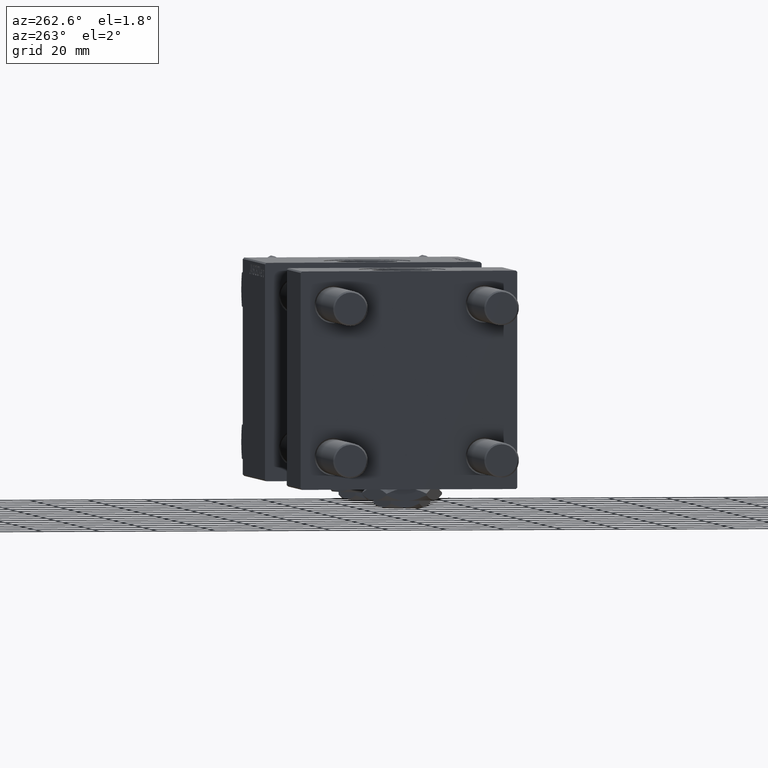
[diagram: clean part render]
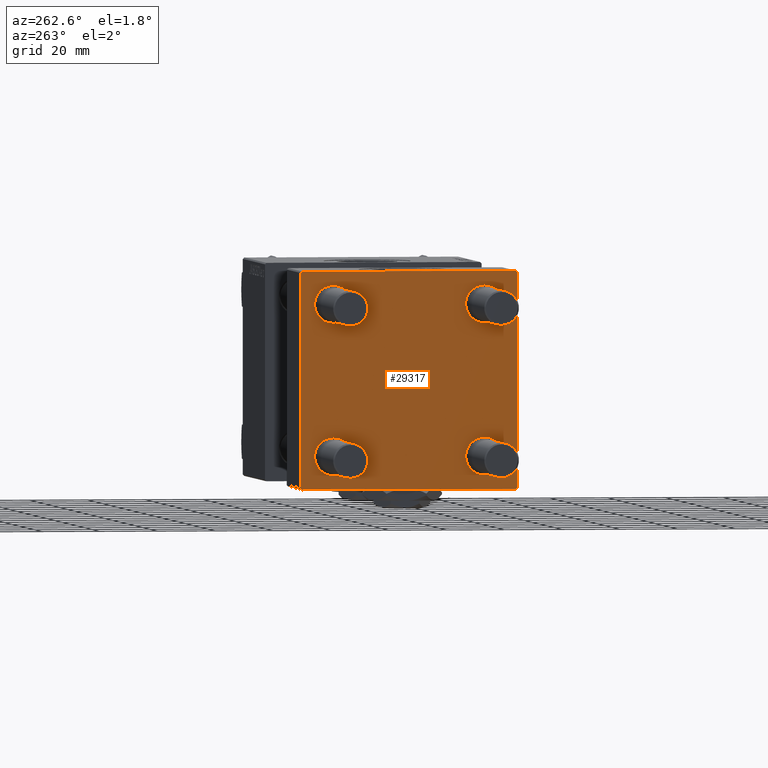
[diagram: same view with one face highlighted and labeled with its STEP entity id]
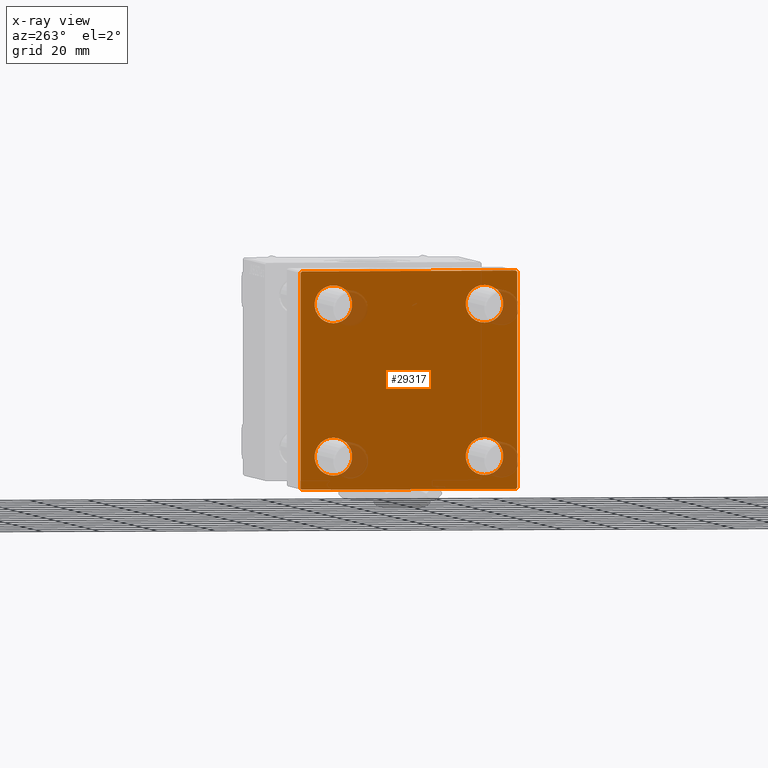
[diagram: x-ray of the same camera — body ghosted, the highlighted face saturated]
A machine part, auxiliary view. The second image highlights one B-rep face of the part: STEP entity #29317.
The next image is the same camera in x-ray: the body ghosted, the highlighted face saturated — about 5% of this face is hidden behind the body in this view.
In plain terms, the highlighted planar face has unit normal (-1, 0, 0).
Its self-contained STEP definition (entity closure, byte-faithful):
#178 = VECTOR ( 'NONE', #11748, 1000.000000000000114 ) ;
#1576 = CARTESIAN_POINT ( 'NONE',  ( 0.000000000000000000, -26.14999999999999147, -32.65000000000002700 ) ) ;
#1893 = VECTOR ( 'NONE', #28118, 1000.000000000000000 ) ;
#2007 = CARTESIAN_POINT ( 'NONE',  ( 0.000000000000000000, 0.000000000000000000, 0.000000000000000000 ) ) ;
#2106 = VERTEX_POINT ( 'NONE', #25267 ) ;
#2369 = VERTEX_POINT ( 'NONE', #8404 ) ;
#2412 = AXIS2_PLACEMENT_3D ( 'NONE', #12849, #44803, #24887 ) ;
#3468 = CIRCLE ( 'NONE', #51130, 6.500000000000023093 ) ;
#4313 = EDGE_CURVE ( 'NONE', #34933, #24741, #44848, .T. ) ;
#4347 = ORIENTED_EDGE ( 'NONE', *, *, #42745, .T. ) ;
#4608 = DIRECTION ( 'NONE',  ( 1.000000000000000000, -0.000000000000000000, 0.000000000000000000 ) ) ;
#4753 = DIRECTION ( 'NONE',  ( 0.000000000000000000, 0.000000000000000000, 1.000000000000000000 ) ) ;
#4957 = ORIENTED_EDGE ( 'NONE', *, *, #31213, .T. ) ;
#5918 = FACE_BOUND ( 'NONE', #28981, .T. ) ;
#6081 = CARTESIAN_POINT ( 'NONE',  ( 0.000000000000000000, 26.14999999999999858, 32.65000000000002700 ) ) ;
#6432 = ORIENTED_EDGE ( 'NONE', *, *, #49202, .F. ) ;
#6449 = DIRECTION ( 'NONE',  ( 0.000000000000000000, 0.000000000000000000, 1.000000000000000000 ) ) ;
#6750 = DIRECTION ( 'NONE',  ( 1.000000000000000000, -0.000000000000000000, 0.000000000000000000 ) ) ;
#7423 = LINE ( 'NONE', #19470, #35389 ) ;
#7807 = CARTESIAN_POINT ( 'NONE',  ( 0.000000000000000000, 26.14999999999999858, -32.65000000000001990 ) ) ;
#8109 = ORIENTED_EDGE ( 'NONE', *, *, #46421, .T. ) ;
#8154 = CIRCLE ( 'NONE', #34086, 6.500000000000023093 ) ;
#8404 = CARTESIAN_POINT ( 'NONE',  ( 0.000000000000000000, -37.00000000000002132, -37.50000000000000711 ) ) ;
#8838 = DIRECTION ( 'NONE',  ( 0.000000000000000000, 0.000000000000000000, 1.000000000000000000 ) ) ;
#8989 = CARTESIAN_POINT ( 'NONE',  ( 0.000000000000000000, -37.50000000000000711, 37.49999999999999289 ) ) ;
#10188 = VERTEX_POINT ( 'NONE', #6081 ) ;
#10201 = DIRECTION ( 'NONE',  ( 0.000000000000000000, 0.7071067811865474617, -0.7071067811865474617 ) ) ;
#10620 = FACE_BOUND ( 'NONE', #19573, .T. ) ;
#10710 = LINE ( 'NONE', #18829, #18233 ) ;
#11270 = AXIS2_PLACEMENT_3D ( 'NONE', #19413, #25149, #4753 ) ;
#11748 = DIRECTION ( 'NONE',  ( -0.000000000000000000, 0.7071067811865474617, 0.7071067811865474617 ) ) ;
#11814 = ORIENTED_EDGE ( 'NONE', *, *, #15013, .T. ) ;
#12389 = DIRECTION ( 'NONE',  ( 0.000000000000000000, 0.000000000000000000, -1.000000000000000000 ) ) ;
#12843 = EDGE_CURVE ( 'NONE', #28281, #25178, #13624, .T. ) ;
#12849 = CARTESIAN_POINT ( 'NONE',  ( 0.000000000000000000, -26.14999999999999147, 26.15000000000000924 ) ) ;
#13401 = CARTESIAN_POINT ( 'NONE',  ( 0.000000000000000000, 37.49999999999999289, 37.50000000000000000 ) ) ;
#13563 = VECTOR ( 'NONE', #37706, 1000.000000000000114 ) ;
#13624 = LINE ( 'NONE', #22236, #13563 ) ;
#13672 = DIRECTION ( 'NONE',  ( 0.000000000000000000, -1.000000000000000000, -9.251858538542971581E-17 ) ) ;
#13984 = AXIS2_PLACEMENT_3D ( 'NONE', #2007, #22136, #17963 ) ;
#14288 = FACE_BOUND ( 'NONE', #48831, .T. ) ;
#14588 = LINE ( 'NONE', #35001, #19962 ) ;
#14923 = VERTEX_POINT ( 'NONE', #46260 ) ;
#15013 = EDGE_CURVE ( 'NONE', #14923, #28281, #7423, .T. ) ;
#15428 = EDGE_CURVE ( 'NONE', #50281, #34724, #46400, .T. ) ;
#15558 = CARTESIAN_POINT ( 'NONE',  ( 0.000000000000000000, 26.14999999999999858, -26.15000000000000213 ) ) ;
#15584 = ORIENTED_EDGE ( 'NONE', *, *, #37550, .T. ) ;
#16428 = CARTESIAN_POINT ( 'NONE',  ( 0.000000000000000000, 37.49999999999999289, -36.99999999999998579 ) ) ;
#17515 = CARTESIAN_POINT ( 'NONE',  ( 0.000000000000000000, 37.49999999999999289, -37.50000000000000000 ) ) ;
#17963 = DIRECTION ( 'NONE',  ( -0.000000000000000000, 0.000000000000000000, 1.000000000000000000 ) ) ;
#18166 = CARTESIAN_POINT ( 'NONE',  ( 0.000000000000000000, 36.99999999999999289, 37.50000000000000000 ) ) ;
#18233 = VECTOR ( 'NONE', #10201, 1000.000000000000114 ) ;
#18265 = ORIENTED_EDGE ( 'NONE', *, *, #32435, .T. ) ;
#18277 = LINE ( 'NONE', #17515, #28524 ) ;
#18829 = CARTESIAN_POINT ( 'NONE',  ( 0.000000000000000000, 37.24999999999999289, 37.24999999999999289 ) ) ;
#19413 = CARTESIAN_POINT ( 'NONE',  ( 0.000000000000000000, -26.14999999999999147, -26.15000000000000924 ) ) ;
#19470 = CARTESIAN_POINT ( 'NONE',  ( 0.000000000000000000, 37.49999999999999289, 37.50000000000000000 ) ) ;
#19573 = EDGE_LOOP ( 'NONE', ( #23287, #46612 ) ) ;
#19681 = VERTEX_POINT ( 'NONE', #26017 ) ;
#19728 = ORIENTED_EDGE ( 'NONE', *, *, #48449, .T. ) ;
#19782 = CARTESIAN_POINT ( 'NONE',  ( 0.000000000000000000, 26.14999999999999858, 26.15000000000000213 ) ) ;
#19962 = VECTOR ( 'NONE', #50736, 1000.000000000000000 ) ;
#19995 = CIRCLE ( 'NONE', #45904, 6.500000000000015987 ) ;
#20005 = EDGE_LOOP ( 'NONE', ( #31922, #36387 ) ) ;
#20235 = EDGE_CURVE ( 'NONE', #22382, #32514, #22859, .T. ) ;
#20823 = AXIS2_PLACEMENT_3D ( 'NONE', #19782, #27899, #23971 ) ;
#21282 = AXIS2_PLACEMENT_3D ( 'NONE', #48650, #43945, #8838 ) ;
#21636 = CIRCLE ( 'NONE', #20823, 6.500000000000023093 ) ;
#22136 = DIRECTION ( 'NONE',  ( -1.000000000000000000, 0.000000000000000000, -0.000000000000000000 ) ) ;
#22236 = CARTESIAN_POINT ( 'NONE',  ( 0.000000000000000000, 37.24999999999998579, -37.24999999999998579 ) ) ;
#22382 = VERTEX_POINT ( 'NONE', #33133 ) ;
#22859 = CIRCLE ( 'NONE', #21282, 6.500000000000015987 ) ;
#23033 = CARTESIAN_POINT ( 'NONE',  ( -0.000000000000000000, -37.25000000000000000, 37.25000000000000000 ) ) ;
#23287 = ORIENTED_EDGE ( 'NONE', *, *, #20235, .T. ) ;
#23971 = DIRECTION ( 'NONE',  ( 0.000000000000000000, 0.000000000000000000, 1.000000000000000000 ) ) ;
#24741 = VERTEX_POINT ( 'NONE', #40555 ) ;
#24887 = DIRECTION ( 'NONE',  ( 0.000000000000000000, 0.000000000000000000, 1.000000000000000000 ) ) ;
#25149 = DIRECTION ( 'NONE',  ( 1.000000000000000000, -0.000000000000000000, 0.000000000000000000 ) ) ;
#25178 = VERTEX_POINT ( 'NONE', #45436 ) ;
#25267 = CARTESIAN_POINT ( 'NONE',  ( 0.000000000000000000, -37.50000000000000000, -37.00000000000003553 ) ) ;
#25717 = CIRCLE ( 'NONE', #33229, 6.500000000000015987 ) ;
#26017 = CARTESIAN_POINT ( 'NONE',  ( 0.000000000000000000, 26.14999999999999858, 19.64999999999998437 ) ) ;
#26389 = ORIENTED_EDGE ( 'NONE', *, *, #4313, .F. ) ;
#27279 = VERTEX_POINT ( 'NONE', #32323 ) ;
#27850 = DIRECTION ( 'NONE',  ( 1.000000000000000000, -0.000000000000000000, 0.000000000000000000 ) ) ;
#27899 = DIRECTION ( 'NONE',  ( 1.000000000000000000, -0.000000000000000000, 0.000000000000000000 ) ) ;
#28118 = DIRECTION ( 'NONE',  ( 0.000000000000000000, 9.251858538542971581E-17, -1.000000000000000000 ) ) ;
#28281 = VERTEX_POINT ( 'NONE', #16428 ) ;
#28524 = VECTOR ( 'NONE', #50244, 1000.000000000000000 ) ;
#28981 = EDGE_LOOP ( 'NONE', ( #4957, #15584 ) ) ;
#29317 = ADVANCED_FACE ( 'NONE', ( #14288, #41794, #10620, #5918, #46502 ), #37864, .T. ) ;
#31145 = LINE ( 'NONE', #23033, #178 ) ;
#31213 = EDGE_CURVE ( 'NONE', #10188, #19681, #8154, .T. ) ;
#31922 = ORIENTED_EDGE ( 'NONE', *, *, #15428, .T. ) ;
#32323 = CARTESIAN_POINT ( 'NONE',  ( 0.000000000000000000, -37.50000000000000711, 36.99999999999999289 ) ) ;
#32435 = EDGE_CURVE ( 'NONE', #34933, #14923, #10710, .T. ) ;
#32514 = VERTEX_POINT ( 'NONE', #7807 ) ;
#32833 = CARTESIAN_POINT ( 'NONE',  ( 0.000000000000000000, -26.14999999999999147, 32.65000000000003411 ) ) ;
#32932 = EDGE_CURVE ( 'NONE', #45876, #46506, #33340, .T. ) ;
#33133 = CARTESIAN_POINT ( 'NONE',  ( 0.000000000000000000, 26.14999999999999858, -19.64999999999998792 ) ) ;
#33229 = AXIS2_PLACEMENT_3D ( 'NONE', #15558, #27850, #44362 ) ;
#33340 = CIRCLE ( 'NONE', #2412, 6.500000000000023093 ) ;
#33499 = EDGE_CURVE ( 'NONE', #2369, #2106, #14588, .T. ) ;
#33824 = EDGE_CURVE ( 'NONE', #32514, #22382, #25717, .T. ) ;
#34022 = EDGE_LOOP ( 'NONE', ( #11814, #35084, #4347, #36038, #6432, #19728, #26389, #18265 ) ) ;
#34086 = AXIS2_PLACEMENT_3D ( 'NONE', #49102, #4608, #44908 ) ;
#34239 = DIRECTION ( 'NONE',  ( 0.000000000000000000, 0.000000000000000000, 1.000000000000000000 ) ) ;
#34724 = VERTEX_POINT ( 'NONE', #1576 ) ;
#34933 = VERTEX_POINT ( 'NONE', #18166 ) ;
#35001 = CARTESIAN_POINT ( 'NONE',  ( 0.000000000000000000, -37.24999999999975842, -37.25000000000027001 ) ) ;
#35084 = ORIENTED_EDGE ( 'NONE', *, *, #12843, .T. ) ;
#35389 = VECTOR ( 'NONE', #12389, 1000.000000000000000 ) ;
#35971 = LINE ( 'NONE', #8989, #1893 ) ;
#36038 = ORIENTED_EDGE ( 'NONE', *, *, #33499, .T. ) ;
#36387 = ORIENTED_EDGE ( 'NONE', *, *, #37411, .T. ) ;
#37411 = EDGE_CURVE ( 'NONE', #34724, #50281, #19995, .T. ) ;
#37550 = EDGE_CURVE ( 'NONE', #19681, #10188, #21636, .T. ) ;
#37706 = DIRECTION ( 'NONE',  ( -0.000000000000000000, -0.7071067811865474617, -0.7071067811865474617 ) ) ;
#37864 = PLANE ( 'NONE',  #13984 ) ;
#40384 = CARTESIAN_POINT ( 'NONE',  ( 0.000000000000000000, -26.14999999999999147, 19.64999999999999147 ) ) ;
#40555 = CARTESIAN_POINT ( 'NONE',  ( 0.000000000000000000, -37.00000000000000711, 37.49999999999999289 ) ) ;
#41794 = FACE_BOUND ( 'NONE', #20005, .T. ) ;
#41928 = CARTESIAN_POINT ( 'NONE',  ( 0.000000000000000000, -26.14999999999999147, -19.64999999999999503 ) ) ;
#42132 = ORIENTED_EDGE ( 'NONE', *, *, #32932, .T. ) ;
#42600 = DIRECTION ( 'NONE',  ( 1.000000000000000000, -0.000000000000000000, 0.000000000000000000 ) ) ;
#42664 = VECTOR ( 'NONE', #13672, 1000.000000000000000 ) ;
#42745 = EDGE_CURVE ( 'NONE', #25178, #2369, #18277, .T. ) ;
#43945 = DIRECTION ( 'NONE',  ( 1.000000000000000000, -0.000000000000000000, 0.000000000000000000 ) ) ;
#44362 = DIRECTION ( 'NONE',  ( 0.000000000000000000, 0.000000000000000000, 1.000000000000000000 ) ) ;
#44803 = DIRECTION ( 'NONE',  ( 1.000000000000000000, -0.000000000000000000, 0.000000000000000000 ) ) ;
#44848 = LINE ( 'NONE', #13401, #42664 ) ;
#44908 = DIRECTION ( 'NONE',  ( 0.000000000000000000, 0.000000000000000000, 1.000000000000000000 ) ) ;
#45436 = CARTESIAN_POINT ( 'NONE',  ( 0.000000000000000000, 36.99999999999997868, -37.50000000000000000 ) ) ;
#45876 = VERTEX_POINT ( 'NONE', #40384 ) ;
#45904 = AXIS2_PLACEMENT_3D ( 'NONE', #46519, #42600, #6449 ) ;
#46260 = CARTESIAN_POINT ( 'NONE',  ( 0.000000000000000000, 37.49999999999999289, 37.00000000000000000 ) ) ;
#46400 = CIRCLE ( 'NONE', #11270, 6.500000000000015987 ) ;
#46421 = EDGE_CURVE ( 'NONE', #46506, #45876, #3468, .T. ) ;
#46502 = FACE_OUTER_BOUND ( 'NONE', #34022, .T. ) ;
#46506 = VERTEX_POINT ( 'NONE', #32833 ) ;
#46519 = CARTESIAN_POINT ( 'NONE',  ( 0.000000000000000000, -26.14999999999999147, -26.15000000000000924 ) ) ;
#46612 = ORIENTED_EDGE ( 'NONE', *, *, #33824, .T. ) ;
#46820 = CARTESIAN_POINT ( 'NONE',  ( 0.000000000000000000, -26.14999999999999147, 26.15000000000000924 ) ) ;
#48449 = EDGE_CURVE ( 'NONE', #27279, #24741, #31145, .T. ) ;
#48650 = CARTESIAN_POINT ( 'NONE',  ( 0.000000000000000000, 26.14999999999999858, -26.15000000000000213 ) ) ;
#48831 = EDGE_LOOP ( 'NONE', ( #8109, #42132 ) ) ;
#49102 = CARTESIAN_POINT ( 'NONE',  ( 0.000000000000000000, 26.14999999999999858, 26.15000000000000213 ) ) ;
#49202 = EDGE_CURVE ( 'NONE', #27279, #2106, #35971, .T. ) ;
#50244 = DIRECTION ( 'NONE',  ( 0.000000000000000000, -1.000000000000000000, -9.251858538542972814E-17 ) ) ;
#50281 = VERTEX_POINT ( 'NONE', #41928 ) ;
#50736 = DIRECTION ( 'NONE',  ( 0.000000000000000000, -0.7071067811865524577, 0.7071067811865426878 ) ) ;
#51130 = AXIS2_PLACEMENT_3D ( 'NONE', #46820, #6750, #34239 ) ;